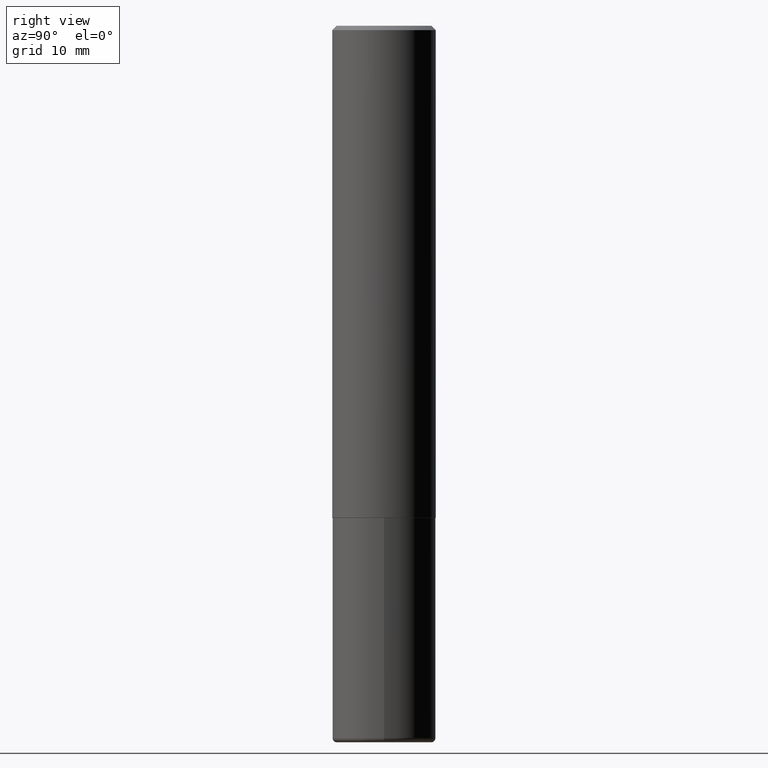
[diagram: clean part render]
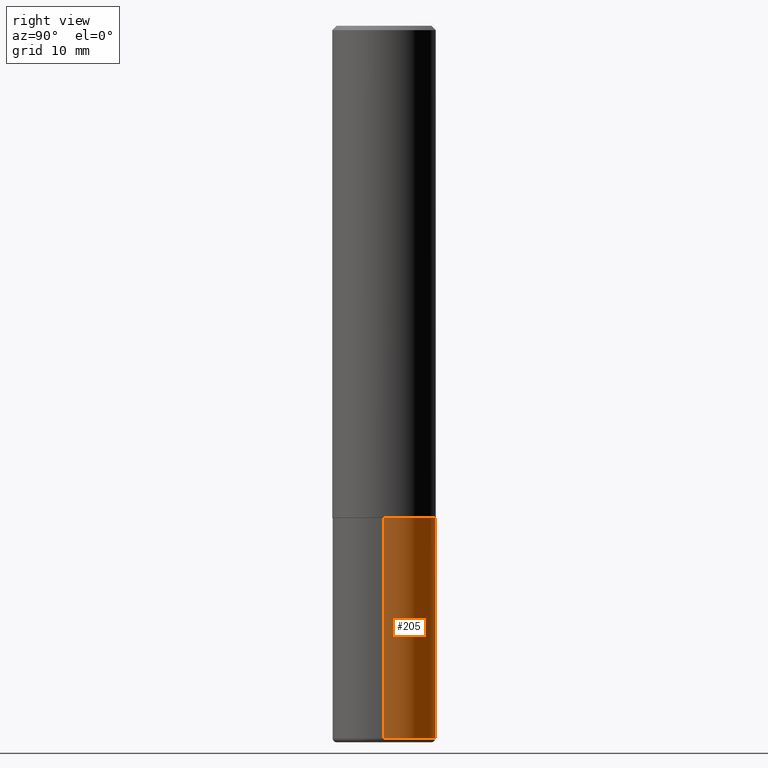
[diagram: same view with one face highlighted and labeled with its STEP entity id]
A machine part, right view. The second image highlights one B-rep face of the part: STEP entity #205.
In plain terms, the highlighted cylindrical surface (partial cylindrical patch) has radius 5.9995 mm, axis along (-0, 0, 1).
Its self-contained STEP definition (entity closure, byte-faithful):
#4 = VERTEX_POINT ( 'NONE', #67 ) ;
#26 = CIRCLE ( 'NONE', #327, 0.2361999999999999933 ) ;
#28 = ORIENTED_EDGE ( 'NONE', *, *, #382, .F. ) ;
#34 = EDGE_CURVE ( 'NONE', #139, #416, #203, .T. ) ;
#46 = CARTESIAN_POINT ( 'NONE',  ( -0.2361999999999999933, 1.678301941865356591E-15, -1.161852468318208757E-29 ) ) ;
#48 = VECTOR ( 'NONE', #177, 39.37007874015748143 ) ;
#51 = CYLINDRICAL_SURFACE ( 'NONE', #55, 0.2361999999999999933 ) ;
#55 = AXIS2_PLACEMENT_3D ( 'NONE', #219, #349, #217 ) ;
#67 = CARTESIAN_POINT ( 'NONE',  ( 0.2362000000000000766, -1.298970717303203651E-14, -3.248000000000000220 ) ) ;
#74 = CARTESIAN_POINT ( 'NONE',  ( 5.487876547960065873E-29, -7.835233272497903917E-15, -2.244100000000000428 ) ) ;
#75 = CARTESIAN_POINT ( 'NONE',  ( -0.2362000000000000766, -9.662029446697182017E-15, -3.248000000000000220 ) ) ;
#89 = VECTOR ( 'NONE', #304, 39.37007874015748143 ) ;
#94 = EDGE_CURVE ( 'NONE', #4, #139, #26, .T. ) ;
#98 = AXIS2_PLACEMENT_3D ( 'NONE', #74, #143, #148 ) ;
#112 = CARTESIAN_POINT ( 'NONE',  ( 0.2361999999999999933, -1.649375784469496131E-15, 1.151752954443000088E-29 ) ) ;
#139 = VERTEX_POINT ( 'NONE', #75 ) ;
#143 = DIRECTION ( 'NONE',  ( -2.445468806185136597E-29, 3.491481338843145583E-15, 1.000000000000000000 ) ) ;
#148 = DIRECTION ( 'NONE',  ( 1.000000000000000000, -6.982962677686269077E-15, 0.000000000000000000 ) ) ;
#156 = FACE_OUTER_BOUND ( 'NONE', #357, .T. ) ;
#177 = DIRECTION ( 'NONE',  ( -2.445468806185136877E-29, 3.491481338843145188E-15, 1.000000000000000000 ) ) ;
#203 = LINE ( 'NONE', #46, #89 ) ;
#205 = ADVANCED_FACE ( 'NONE', ( #156 ), #51, .T. ) ;
#213 = DIRECTION ( 'NONE',  ( -2.445468806185136597E-29, 3.491481338843145583E-15, 1.000000000000000000 ) ) ;
#217 = DIRECTION ( 'NONE',  ( 1.000000000000000000, -6.982962677686266711E-15, 4.876176775795936353E-29 ) ) ;
#219 = CARTESIAN_POINT ( 'NONE',  ( 0.000000000000000000, 0.000000000000000000, 0.000000000000000000 ) ) ;
#250 = CARTESIAN_POINT ( 'NONE',  ( 0.2361999999999999933, -9.484609056967400443E-15, -2.244100000000000428 ) ) ;
#294 = ORIENTED_EDGE ( 'NONE', *, *, #34, .T. ) ;
#297 = VERTEX_POINT ( 'NONE', #250 ) ;
#304 = DIRECTION ( 'NONE',  ( -2.445468806185136877E-29, 3.491481338843145188E-15, 1.000000000000000000 ) ) ;
#327 = AXIS2_PLACEMENT_3D ( 'NONE', #338, #213, #347 ) ;
#328 = ORIENTED_EDGE ( 'NONE', *, *, #94, .T. ) ;
#333 = CIRCLE ( 'NONE', #98, 0.2361999999999999933 ) ;
#337 = EDGE_CURVE ( 'NONE', #297, #416, #333, .T. ) ;
#338 = CARTESIAN_POINT ( 'NONE',  ( 7.942882682489324976E-29, -1.134033138856253841E-14, -3.248000000000000220 ) ) ;
#340 = LINE ( 'NONE', #112, #48 ) ;
#346 = CARTESIAN_POINT ( 'NONE',  ( -0.2361999999999999933, -7.909480388664863981E-15, -2.244100000000000428 ) ) ;
#347 = DIRECTION ( 'NONE',  ( 1.000000000000000000, -6.982962677686265133E-15, 0.000000000000000000 ) ) ;
#349 = DIRECTION ( 'NONE',  ( -2.445468806185136597E-29, 3.491481338843145583E-15, 1.000000000000000000 ) ) ;
#357 = EDGE_LOOP ( 'NONE', ( #328, #294, #399, #28 ) ) ;
#382 = EDGE_CURVE ( 'NONE', #4, #297, #340, .T. ) ;
#399 = ORIENTED_EDGE ( 'NONE', *, *, #337, .F. ) ;
#416 = VERTEX_POINT ( 'NONE', #346 ) ;